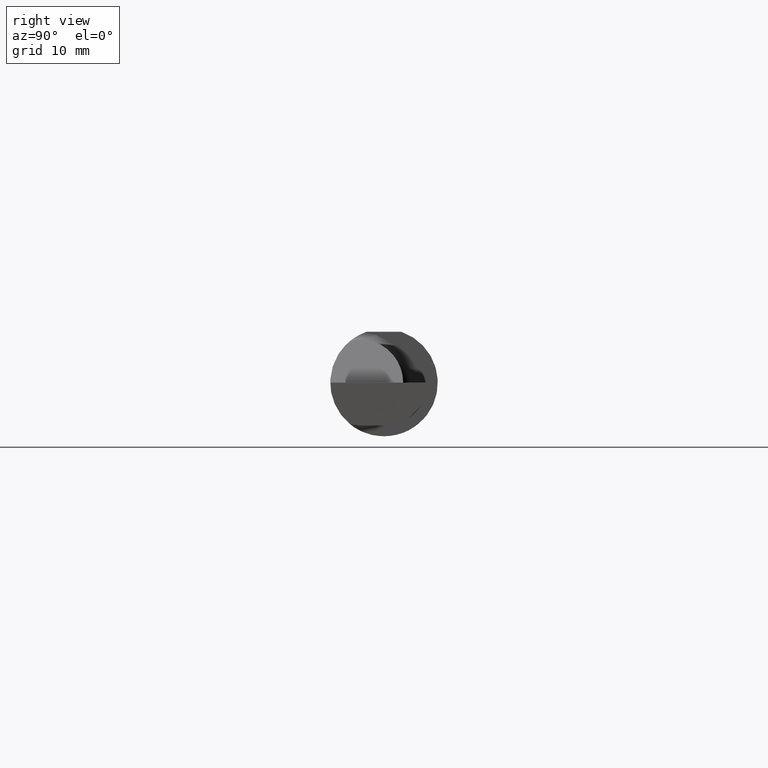
[diagram: clean part render]
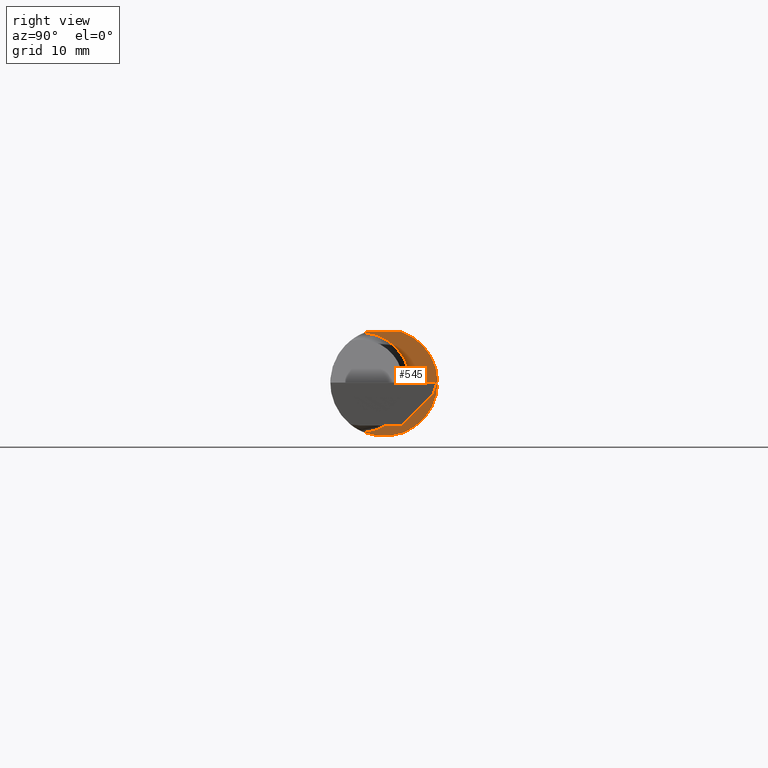
[diagram: same view with one face highlighted and labeled with its STEP entity id]
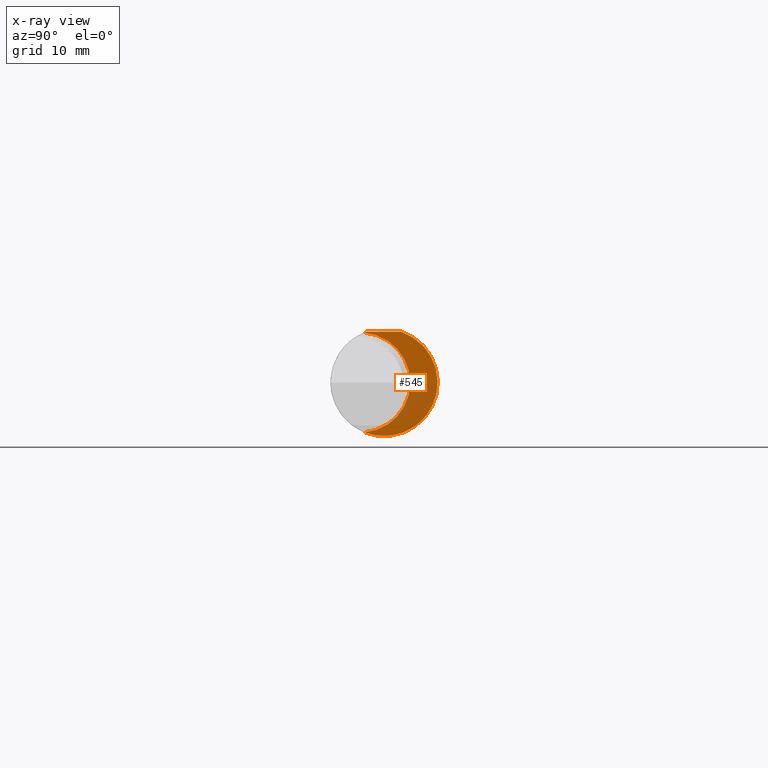
[diagram: x-ray of the same camera — body ghosted, the highlighted face saturated]
A machine part, right view. The second image highlights one B-rep face of the part: STEP entity #545.
The next image is the same camera in x-ray: the body ghosted, the highlighted face saturated — about 27% of this face is hidden behind the body in this view.
In plain terms, the highlighted planar face has unit normal (1, 0, 0).
Its self-contained STEP definition (entity closure, byte-faithful):
#20 = VECTOR ( 'NONE', #598, 39.37007874015748143 ) ;
#54 = AXIS2_PLACEMENT_3D ( 'NONE', #539, #199, #688 ) ;
#62 = EDGE_CURVE ( 'NONE', #178, #312, #600, .T. ) ;
#80 = VERTEX_POINT ( 'NONE', #399 ) ;
#94 = ORIENTED_EDGE ( 'NONE', *, *, #248, .T. ) ;
#106 = CARTESIAN_POINT ( 'NONE',  ( 1.450000000000000178, -0.1873500000000000443, 0.1773499999999999799 ) ) ;
#114 = DIRECTION ( 'NONE',  ( 0.000000000000000000, -1.000000000000000000, 0.000000000000000000 ) ) ;
#151 = CIRCLE ( 'NONE', #411, 0.1749999999999999889 ) ;
#155 = DIRECTION ( 'NONE',  ( 1.000000000000000000, 1.698910443821059307E-17, 0.000000000000000000 ) ) ;
#178 = VERTEX_POINT ( 'NONE', #491 ) ;
#199 = DIRECTION ( 'NONE',  ( 1.000000000000000000, 1.698910443821059307E-17, 0.000000000000000000 ) ) ;
#203 = DIRECTION ( 'NONE',  ( -1.000000000000000000, -1.698910443821059307E-17, -0.000000000000000000 ) ) ;
#212 = CARTESIAN_POINT ( 'NONE',  ( 1.450000000000000178, 0.06039039658754216666, 0.1773499999999999799 ) ) ;
#248 = EDGE_CURVE ( 'NONE', #80, #764, #838, .T. ) ;
#312 = VERTEX_POINT ( 'NONE', #356 ) ;
#331 = ORIENTED_EDGE ( 'NONE', *, *, #582, .T. ) ;
#346 = CARTESIAN_POINT ( 'NONE',  ( 1.450000000000000178, -0.08334999999999996578, 0.000000000000000000 ) ) ;
#356 = CARTESIAN_POINT ( 'NONE',  ( 1.450000000000000178, -0.06851976604679065053, 0.1743704796142198643 ) ) ;
#359 = CARTESIAN_POINT ( 'NONE',  ( 1.450000000000000178, 0.000000000000000000, 0.000000000000000000 ) ) ;
#399 = CARTESIAN_POINT ( 'NONE',  ( 1.450000000000000178, -0.06851976604679065053, -0.1743704796142198643 ) ) ;
#411 = AXIS2_PLACEMENT_3D ( 'NONE', #346, #203, #114 ) ;
#459 = FACE_OUTER_BOUND ( 'NONE', #861, .T. ) ;
#477 = EDGE_CURVE ( 'NONE', #178, #764, #800, .T. ) ;
#491 = CARTESIAN_POINT ( 'NONE',  ( 1.450000000000000178, -0.06039039658753695555, 0.1773499999999999799 ) ) ;
#537 = CARTESIAN_POINT ( 'NONE',  ( 1.450000000000000178, 0.2666499999999999426, 0.000000000000000000 ) ) ;
#539 = CARTESIAN_POINT ( 'NONE',  ( 1.450000000000000178, 0.000000000000000000, 0.000000000000000000 ) ) ;
#545 = ADVANCED_FACE ( 'NONE', ( #459 ), #555, .T. ) ;
#555 = PLANE ( 'NONE',  #672 ) ;
#573 = ORIENTED_EDGE ( 'NONE', *, *, #477, .F. ) ;
#582 = EDGE_CURVE ( 'NONE', #312, #80, #151, .T. ) ;
#598 = DIRECTION ( 'NONE',  ( -1.698910443821059307E-17, 1.000000000000000000, 0.000000000000000000 ) ) ;
#600 = CIRCLE ( 'NONE', #54, 0.1873499999999999888 ) ;
#619 = ORIENTED_EDGE ( 'NONE', *, *, #62, .T. ) ;
#644 = DIRECTION ( 'NONE',  ( 0.000000000000000000, 1.000000000000000000, 0.000000000000000000 ) ) ;
#672 = AXIS2_PLACEMENT_3D ( 'NONE', #537, #693, #827 ) ;
#688 = DIRECTION ( 'NONE',  ( 0.000000000000000000, 1.000000000000000000, 0.000000000000000000 ) ) ;
#693 = DIRECTION ( 'NONE',  ( 1.000000000000000000, 1.698910443821059307E-17, 0.000000000000000000 ) ) ;
#729 = AXIS2_PLACEMENT_3D ( 'NONE', #359, #155, #644 ) ;
#764 = VERTEX_POINT ( 'NONE', #212 ) ;
#800 = LINE ( 'NONE', #106, #20 ) ;
#827 = DIRECTION ( 'NONE',  ( -1.698910443821059307E-17, 1.000000000000000000, 0.000000000000000000 ) ) ;
#838 = CIRCLE ( 'NONE', #729, 0.1873499999999999888 ) ;
#861 = EDGE_LOOP ( 'NONE', ( #94, #573, #619, #331 ) ) ;